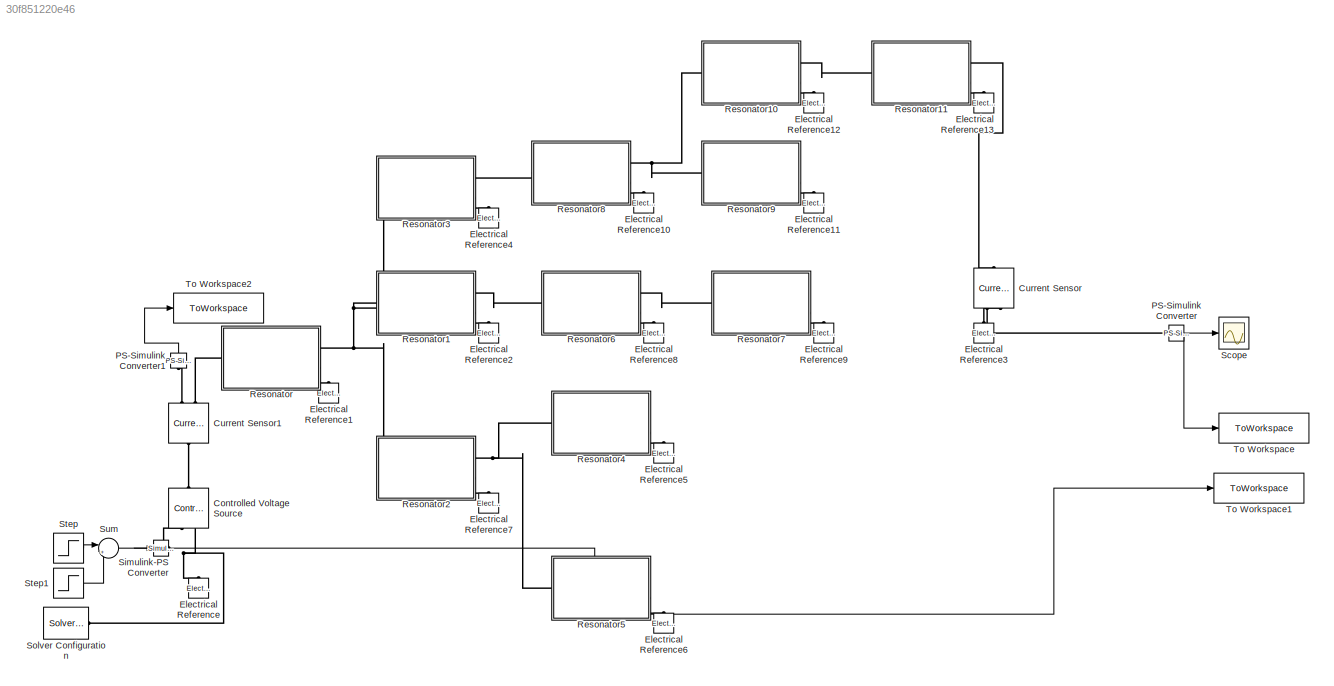
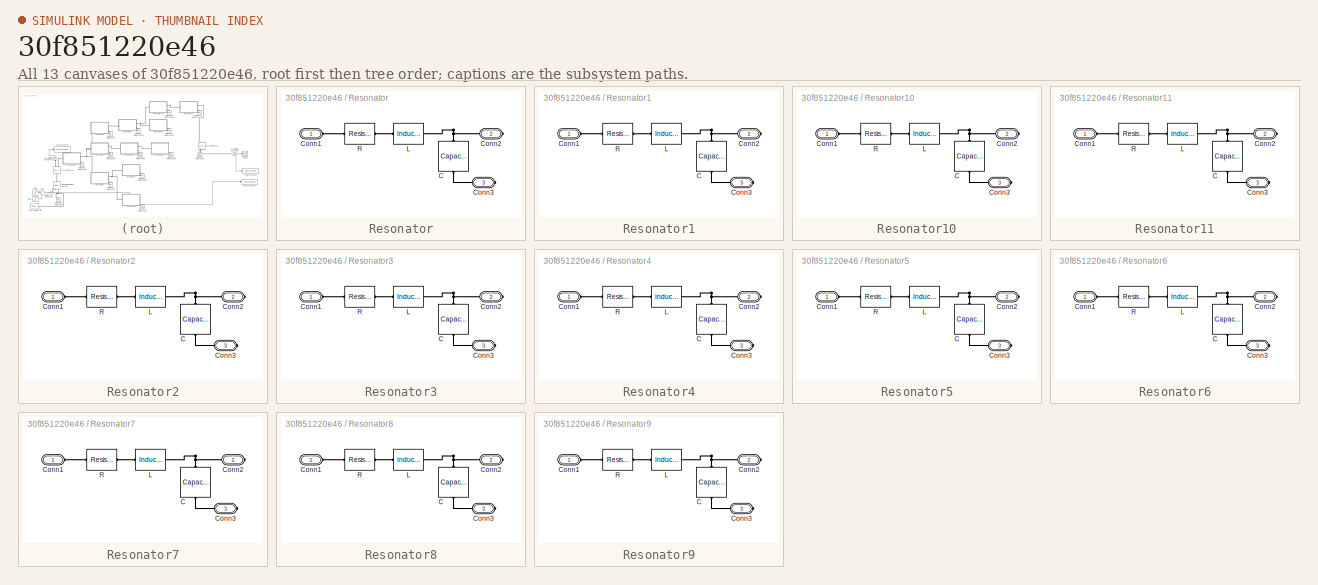
[diagram: thumbnail index - all 13 canvases of the model, root first then tree order]
MODEL slx_30f851220e46
KIND model
CONFIG AbsTol = auto
CONFIG EnableMultiTasking = off
CONFIG FixedStep = 1/Fs
CONFIG MaxStep = auto
CONFIG MinStep = auto
CONFIG PreLoadFcn = 50000
CONFIG RelTol = 1e-3
CONFIG SampleTimeConstraint = Unconstrained
CONFIG SolverName = FixedStepAuto
CONFIG StartTime = 0.0
CONFIG StopTime = 0.1
BLOCK [Reference] Controlled Voltage Source  REF=fl_lib/Electrical/Electrical Sources/Controlled Voltage
Source
  NameLocation = left
  Ports = [0, 0, 0, 0, 0, 1, 2]
  SourceBlock = fl_lib/Electrical/Electrical Sources/Controlled Voltage\nSource
  SourceProductBaseCode = SS
  SourceType = Controlled Voltage\nSource
BLOCK [Reference] Current Sensor  REF=fl_lib/Electrical/Electrical Sensors/Current Sensor
  NameLocation = left
  Ports = [0, 0, 0, 0, 0, 1, 2]
  SourceBlock = fl_lib/Electrical/Electrical Sensors/Current Sensor
  SourceProductBaseCode = SS
  SourceType = Current Sensor
BLOCK [Reference] Current Sensor1  REF=fl_lib/Electrical/Electrical Sensors/Current Sensor
  NameLocation = right
  Ports = [0, 0, 0, 0, 0, 1, 2]
  SourceBlock = fl_lib/Electrical/Electrical Sensors/Current Sensor
  SourceProductBaseCode = SS
  SourceType = Current Sensor
BLOCK [Reference] Electrical Reference  REF=fl_lib/Electrical/Electrical Elements/Electrical Reference
  NameLocation = right
  Ports = [0, 0, 0, 0, 0, 1]
  SourceBlock = fl_lib/Electrical/Electrical Elements/Electrical Reference
  SourceProductBaseCode = SS
  SourceType = Electrical Reference
BLOCK [Reference] Electrical Reference1  REF=fl_lib/Electrical/Electrical Elements/Electrical Reference
  NameLocation = right
  Ports = [0, 0, 0, 0, 0, 1]
  SourceBlock = fl_lib/Electrical/Electrical Elements/Electrical Reference
  SourceProductBaseCode = SS
  SourceType = Electrical Reference
BLOCK [Reference] Electrical Reference10  REF=fl_lib/Electrical/Electrical Elements/Electrical Reference
  NameLocation = right
  Ports = [0, 0, 0, 0, 0, 1]
  SourceBlock = fl_lib/Electrical/Electrical Elements/Electrical Reference
  SourceProductBaseCode = SS
  SourceType = Electrical Reference
BLOCK [Reference] Electrical Reference11  REF=fl_lib/Electrical/Electrical Elements/Electrical Reference
  NameLocation = right
  Ports = [0, 0, 0, 0, 0, 1]
  SourceBlock = fl_lib/Electrical/Electrical Elements/Electrical Reference
  SourceProductBaseCode = SS
  SourceType = Electrical Reference
BLOCK [Reference] Electrical Reference12  REF=fl_lib/Electrical/Electrical Elements/Electrical Reference
  NameLocation = right
  Ports = [0, 0, 0, 0, 0, 1]
  SourceBlock = fl_lib/Electrical/Electrical Elements/Electrical Reference
  SourceProductBaseCode = SS
  SourceType = Electrical Reference
BLOCK [Reference] Electrical Reference13  REF=fl_lib/Electrical/Electrical Elements/Electrical Reference
  NameLocation = right
  Ports = [0, 0, 0, 0, 0, 1]
  SourceBlock = fl_lib/Electrical/Electrical Elements/Electrical Reference
  SourceProductBaseCode = SS
  SourceType = Electrical Reference
BLOCK [Reference] Electrical Reference2  REF=fl_lib/Electrical/Electrical Elements/Electrical Reference
  NameLocation = right
  Ports = [0, 0, 0, 0, 0, 1]
  SourceBlock = fl_lib/Electrical/Electrical Elements/Electrical Reference
  SourceProductBaseCode = SS
  SourceType = Electrical Reference
BLOCK [Reference] Electrical Reference3  REF=fl_lib/Electrical/Electrical Elements/Electrical Reference
  NameLocation = right
  Ports = [0, 0, 0, 0, 0, 1]
  SourceBlock = fl_lib/Electrical/Electrical Elements/Electrical Reference
  SourceProductBaseCode = SS
  SourceType = Electrical Reference
BLOCK [Reference] Electrical Reference4  REF=fl_lib/Electrical/Electrical Elements/Electrical Reference
  NameLocation = right
  Ports = [0, 0, 0, 0, 0, 1]
  SourceBlock = fl_lib/Electrical/Electrical Elements/Electrical Reference
  SourceProductBaseCode = SS
  SourceType = Electrical Reference
BLOCK [Reference] Electrical Reference5  REF=fl_lib/Electrical/Electrical Elements/Electrical Reference
  NameLocation = right
  Ports = [0, 0, 0, 0, 0, 1]
  SourceBlock = fl_lib/Electrical/Electrical Elements/Electrical Reference
  SourceProductBaseCode = SS
  SourceType = Electrical Reference
BLOCK [Reference] Electrical Reference6  REF=fl_lib/Electrical/Electrical Elements/Electrical Reference
  NameLocation = right
  Ports = [0, 0, 0, 0, 0, 1]
  SourceBlock = fl_lib/Electrical/Electrical Elements/Electrical Reference
  SourceProductBaseCode = SS
  SourceType = Electrical Reference
BLOCK [Reference] Electrical Reference7  REF=fl_lib/Electrical/Electrical Elements/Electrical Reference
  NameLocation = right
  Ports = [0, 0, 0, 0, 0, 1]
  SourceBlock = fl_lib/Electrical/Electrical Elements/Electrical Reference
  SourceProductBaseCode = SS
  SourceType = Electrical Reference
BLOCK [Reference] Electrical Reference8  REF=fl_lib/Electrical/Electrical Elements/Electrical Reference
  NameLocation = right
  Ports = [0, 0, 0, 0, 0, 1]
  SourceBlock = fl_lib/Electrical/Electrical Elements/Electrical Reference
  SourceProductBaseCode = SS
  SourceType = Electrical Reference
BLOCK [Reference] Electrical Reference9  REF=fl_lib/Electrical/Electrical Elements/Electrical Reference
  NameLocation = right
  Ports = [0, 0, 0, 0, 0, 1]
  SourceBlock = fl_lib/Electrical/Electrical Elements/Electrical Reference
  SourceProductBaseCode = SS
  SourceType = Electrical Reference
BLOCK [Reference] PS-Simulink Converter  REF=nesl_utility/PS-Simulink
Converter
  Ports = [0, 1, 0, 0, 0, 1]
  SourceBlock = nesl_utility/PS-Simulink\nConverter
  SourceProductBaseCode = PW,SS
  SourceType = PS-Simulink\nConverter
BLOCK [Reference] PS-Simulink Converter1  REF=nesl_utility/PS-Simulink
Converter
  NameLocation = right
  Ports = [0, 1, 0, 0, 0, 1]
  SourceBlock = nesl_utility/PS-Simulink\nConverter
  SourceProductBaseCode = PW,SS
  SourceType = PS-Simulink\nConverter
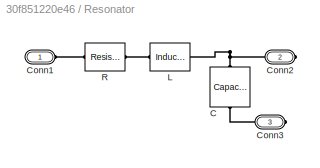
BLOCK [SubSystem] Resonator
  Ports = [0, 0, 0, 0, 0, 1, 2]
  RequestExecContextInheritance = off
BLOCK [Reference] Resonator/C  REF=fl_lib/Electrical/Electrical Elements/Capacitor
  NameLocation = left
  Ports = [0, 0, 0, 0, 0, 1, 1]
  SourceBlock = fl_lib/Electrical/Electrical Elements/Capacitor
  SourceProductBaseCode = SS
  SourceType = Capacitor
BLOCK [PMIOPort] Resonator/Conn1
  Side = Left
BLOCK [PMIOPort] Resonator/Conn2
  Port = 2
  Side = Right
BLOCK [PMIOPort] Resonator/Conn3
  Port = 3
  Side = Right
BLOCK [Reference] Resonator/L  REF=ee_lib/Passive/Inductor
  Ports = [0, 0, 0, 0, 0, 1, 1]
  SourceBlock = ee_lib/Passive/Inductor
  SourceProductBaseCode = PS
  SourceType = Inductor
BLOCK [Reference] Resonator/R  REF=fl_lib/Electrical/Electrical Elements/Resistor
  Ports = [0, 0, 0, 0, 0, 1, 1]
  SourceBlock = fl_lib/Electrical/Electrical Elements/Resistor
  SourceProductBaseCode = SS
  SourceType = Resistor
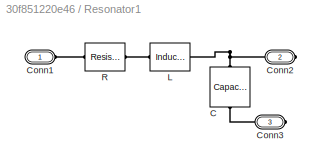
BLOCK [SubSystem] Resonator1
  Ports = [0, 0, 0, 0, 0, 1, 2]
  RequestExecContextInheritance = off
BLOCK [Reference] Resonator1/C  REF=fl_lib/Electrical/Electrical Elements/Capacitor
  NameLocation = left
  Ports = [0, 0, 0, 0, 0, 1, 1]
  SourceBlock = fl_lib/Electrical/Electrical Elements/Capacitor
  SourceProductBaseCode = SS
  SourceType = Capacitor
BLOCK [PMIOPort] Resonator1/Conn1
  Side = Left
BLOCK [PMIOPort] Resonator1/Conn2
  Port = 2
  Side = Right
BLOCK [PMIOPort] Resonator1/Conn3
  Port = 3
  Side = Right
BLOCK [Reference] Resonator1/L  REF=ee_lib/Passive/Inductor
  Ports = [0, 0, 0, 0, 0, 1, 1]
  SourceBlock = ee_lib/Passive/Inductor
  SourceProductBaseCode = PS
  SourceType = Inductor
BLOCK [Reference] Resonator1/R  REF=fl_lib/Electrical/Electrical Elements/Resistor
  Ports = [0, 0, 0, 0, 0, 1, 1]
  SourceBlock = fl_lib/Electrical/Electrical Elements/Resistor
  SourceProductBaseCode = SS
  SourceType = Resistor
BLOCK [SubSystem] Resonator10
  Ports = [0, 0, 0, 0, 0, 1, 2]
  RequestExecContextInheritance = off
BLOCK [Reference] Resonator10/C  REF=fl_lib/Electrical/Electrical Elements/Capacitor
  NameLocation = left
  Ports = [0, 0, 0, 0, 0, 1, 1]
  SourceBlock = fl_lib/Electrical/Electrical Elements/Capacitor
  SourceProductBaseCode = SS
  SourceType = Capacitor
BLOCK [PMIOPort] Resonator10/Conn1
  Side = Left
BLOCK [PMIOPort] Resonator10/Conn2
  Port = 2
  Side = Right
BLOCK [PMIOPort] Resonator10/Conn3
  Port = 3
  Side = Right
BLOCK [Reference] Resonator10/L  REF=ee_lib/Passive/Inductor
  Ports = [0, 0, 0, 0, 0, 1, 1]
  SourceBlock = ee_lib/Passive/Inductor
  SourceProductBaseCode = PS
  SourceType = Inductor
BLOCK [Reference] Resonator10/R  REF=fl_lib/Electrical/Electrical Elements/Resistor
  Ports = [0, 0, 0, 0, 0, 1, 1]
  SourceBlock = fl_lib/Electrical/Electrical Elements/Resistor
  SourceProductBaseCode = SS
  SourceType = Resistor
BLOCK [SubSystem] Resonator11
  Ports = [0, 0, 0, 0, 0, 1, 2]
  RequestExecContextInheritance = off
BLOCK [Reference] Resonator11/C  REF=fl_lib/Electrical/Electrical Elements/Capacitor
  NameLocation = left
  Ports = [0, 0, 0, 0, 0, 1, 1]
  SourceBlock = fl_lib/Electrical/Electrical Elements/Capacitor
  SourceProductBaseCode = SS
  SourceType = Capacitor
BLOCK [PMIOPort] Resonator11/Conn1
  Side = Left
BLOCK [PMIOPort] Resonator11/Conn2
  Port = 2
  Side = Right
BLOCK [PMIOPort] Resonator11/Conn3
  Port = 3
  Side = Right
BLOCK [Reference] Resonator11/L  REF=ee_lib/Passive/Inductor
  Ports = [0, 0, 0, 0, 0, 1, 1]
  SourceBlock = ee_lib/Passive/Inductor
  SourceProductBaseCode = PS
  SourceType = Inductor
BLOCK [Reference] Resonator11/R  REF=fl_lib/Electrical/Electrical Elements/Resistor
  Ports = [0, 0, 0, 0, 0, 1, 1]
  SourceBlock = fl_lib/Electrical/Electrical Elements/Resistor
  SourceProductBaseCode = SS
  SourceType = Resistor
BLOCK [SubSystem] Resonator2
  Ports = [0, 0, 0, 0, 0, 1, 2]
  RequestExecContextInheritance = off
BLOCK [Reference] Resonator2/C  REF=fl_lib/Electrical/Electrical Elements/Capacitor
  NameLocation = left
  Ports = [0, 0, 0, 0, 0, 1, 1]
  SourceBlock = fl_lib/Electrical/Electrical Elements/Capacitor
  SourceProductBaseCode = SS
  SourceType = Capacitor
BLOCK [PMIOPort] Resonator2/Conn1
  Side = Left
BLOCK [PMIOPort] Resonator2/Conn2
  Port = 2
  Side = Right
BLOCK [PMIOPort] Resonator2/Conn3
  Port = 3
  Side = Right
BLOCK [Reference] Resonator2/L  REF=ee_lib/Passive/Inductor
  Ports = [0, 0, 0, 0, 0, 1, 1]
  SourceBlock = ee_lib/Passive/Inductor
  SourceProductBaseCode = PS
  SourceType = Inductor
BLOCK [Reference] Resonator2/R  REF=fl_lib/Electrical/Electrical Elements/Resistor
  Ports = [0, 0, 0, 0, 0, 1, 1]
  SourceBlock = fl_lib/Electrical/Electrical Elements/Resistor
  SourceProductBaseCode = SS
  SourceType = Resistor
BLOCK [SubSystem] Resonator3
  Ports = [0, 0, 0, 0, 0, 1, 2]
  RequestExecContextInheritance = off
BLOCK [Reference] Resonator3/C  REF=fl_lib/Electrical/Electrical Elements/Capacitor
  NameLocation = left
  Ports = [0, 0, 0, 0, 0, 1, 1]
  SourceBlock = fl_lib/Electrical/Electrical Elements/Capacitor
  SourceProductBaseCode = SS
  SourceType = Capacitor
BLOCK [PMIOPort] Resonator3/Conn1
  Side = Left
BLOCK [PMIOPort] Resonator3/Conn2
  Port = 2
  Side = Right
BLOCK [PMIOPort] Resonator3/Conn3
  Port = 3
  Side = Right
BLOCK [Reference] Resonator3/L  REF=ee_lib/Passive/Inductor
  Ports = [0, 0, 0, 0, 0, 1, 1]
  SourceBlock = ee_lib/Passive/Inductor
  SourceProductBaseCode = PS
  SourceType = Inductor
BLOCK [Reference] Resonator3/R  REF=fl_lib/Electrical/Electrical Elements/Resistor
  Ports = [0, 0, 0, 0, 0, 1, 1]
  SourceBlock = fl_lib/Electrical/Electrical Elements/Resistor
  SourceProductBaseCode = SS
  SourceType = Resistor
BLOCK [SubSystem] Resonator4
  Ports = [0, 0, 0, 0, 0, 1, 2]
  RequestExecContextInheritance = off
BLOCK [Reference] Resonator4/C  REF=fl_lib/Electrical/Electrical Elements/Capacitor
  NameLocation = left
  Ports = [0, 0, 0, 0, 0, 1, 1]
  SourceBlock = fl_lib/Electrical/Electrical Elements/Capacitor
  SourceProductBaseCode = SS
  SourceType = Capacitor
BLOCK [PMIOPort] Resonator4/Conn1
  Side = Left
BLOCK [PMIOPort] Resonator4/Conn2
  Port = 2
  Side = Right
BLOCK [PMIOPort] Resonator4/Conn3
  Port = 3
  Side = Right
BLOCK [Reference] Resonator4/L  REF=ee_lib/Passive/Inductor
  Ports = [0, 0, 0, 0, 0, 1, 1]
  SourceBlock = ee_lib/Passive/Inductor
  SourceProductBaseCode = PS
  SourceType = Inductor
BLOCK [Reference] Resonator4/R  REF=fl_lib/Electrical/Electrical Elements/Resistor
  Ports = [0, 0, 0, 0, 0, 1, 1]
  SourceBlock = fl_lib/Electrical/Electrical Elements/Resistor
  SourceProductBaseCode = SS
  SourceType = Resistor
BLOCK [SubSystem] Resonator5
  Ports = [0, 0, 0, 0, 0, 1, 2]
  RequestExecContextInheritance = off
BLOCK [Reference] Resonator5/C  REF=fl_lib/Electrical/Electrical Elements/Capacitor
  NameLocation = left
  Ports = [0, 0, 0, 0, 0, 1, 1]
  SourceBlock = fl_lib/Electrical/Electrical Elements/Capacitor
  SourceProductBaseCode = SS
  SourceType = Capacitor
BLOCK [PMIOPort] Resonator5/Conn1
  Side = Left
BLOCK [PMIOPort] Resonator5/Conn2
  Port = 2
  Side = Right
BLOCK [PMIOPort] Resonator5/Conn3
  Port = 3
  Side = Right
BLOCK [Reference] Resonator5/L  REF=ee_lib/Passive/Inductor
  Ports = [0, 0, 0, 0, 0, 1, 1]
  SourceBlock = ee_lib/Passive/Inductor
  SourceProductBaseCode = PS
  SourceType = Inductor
BLOCK [Reference] Resonator5/R  REF=fl_lib/Electrical/Electrical Elements/Resistor
  Ports = [0, 0, 0, 0, 0, 1, 1]
  SourceBlock = fl_lib/Electrical/Electrical Elements/Resistor
  SourceProductBaseCode = SS
  SourceType = Resistor
BLOCK [SubSystem] Resonator6
  Ports = [0, 0, 0, 0, 0, 1, 2]
  RequestExecContextInheritance = off
BLOCK [Reference] Resonator6/C  REF=fl_lib/Electrical/Electrical Elements/Capacitor
  NameLocation = left
  Ports = [0, 0, 0, 0, 0, 1, 1]
  SourceBlock = fl_lib/Electrical/Electrical Elements/Capacitor
  SourceProductBaseCode = SS
  SourceType = Capacitor
BLOCK [PMIOPort] Resonator6/Conn1
  Side = Left
BLOCK [PMIOPort] Resonator6/Conn2
  Port = 2
  Side = Right
BLOCK [PMIOPort] Resonator6/Conn3
  Port = 3
  Side = Right
BLOCK [Reference] Resonator6/L  REF=ee_lib/Passive/Inductor
  Ports = [0, 0, 0, 0, 0, 1, 1]
  SourceBlock = ee_lib/Passive/Inductor
  SourceProductBaseCode = PS
  SourceType = Inductor
BLOCK [Reference] Resonator6/R  REF=fl_lib/Electrical/Electrical Elements/Resistor
  Ports = [0, 0, 0, 0, 0, 1, 1]
  SourceBlock = fl_lib/Electrical/Electrical Elements/Resistor
  SourceProductBaseCode = SS
  SourceType = Resistor
BLOCK [SubSystem] Resonator7
  Ports = [0, 0, 0, 0, 0, 1, 2]
  RequestExecContextInheritance = off
BLOCK [Reference] Resonator7/C  REF=fl_lib/Electrical/Electrical Elements/Capacitor
  NameLocation = left
  Ports = [0, 0, 0, 0, 0, 1, 1]
  SourceBlock = fl_lib/Electrical/Electrical Elements/Capacitor
  SourceProductBaseCode = SS
  SourceType = Capacitor
BLOCK [PMIOPort] Resonator7/Conn1
  Side = Left
BLOCK [PMIOPort] Resonator7/Conn2
  Port = 2
  Side = Right
BLOCK [PMIOPort] Resonator7/Conn3
  Port = 3
  Side = Right
BLOCK [Reference] Resonator7/L  REF=ee_lib/Passive/Inductor
  Ports = [0, 0, 0, 0, 0, 1, 1]
  SourceBlock = ee_lib/Passive/Inductor
  SourceProductBaseCode = PS
  SourceType = Inductor
BLOCK [Reference] Resonator7/R  REF=fl_lib/Electrical/Electrical Elements/Resistor
  Ports = [0, 0, 0, 0, 0, 1, 1]
  SourceBlock = fl_lib/Electrical/Electrical Elements/Resistor
  SourceProductBaseCode = SS
  SourceType = Resistor
BLOCK [SubSystem] Resonator8
  Ports = [0, 0, 0, 0, 0, 1, 2]
  RequestExecContextInheritance = off
BLOCK [Reference] Resonator8/C  REF=fl_lib/Electrical/Electrical Elements/Capacitor
  NameLocation = left
  Ports = [0, 0, 0, 0, 0, 1, 1]
  SourceBlock = fl_lib/Electrical/Electrical Elements/Capacitor
  SourceProductBaseCode = SS
  SourceType = Capacitor
BLOCK [PMIOPort] Resonator8/Conn1
  Side = Left
BLOCK [PMIOPort] Resonator8/Conn2
  Port = 2
  Side = Right
BLOCK [PMIOPort] Resonator8/Conn3
  Port = 3
  Side = Right
BLOCK [Reference] Resonator8/L  REF=ee_lib/Passive/Inductor
  Ports = [0, 0, 0, 0, 0, 1, 1]
  SourceBlock = ee_lib/Passive/Inductor
  SourceProductBaseCode = PS
  SourceType = Inductor
BLOCK [Reference] Resonator8/R  REF=fl_lib/Electrical/Electrical Elements/Resistor
  Ports = [0, 0, 0, 0, 0, 1, 1]
  SourceBlock = fl_lib/Electrical/Electrical Elements/Resistor
  SourceProductBaseCode = SS
  SourceType = Resistor
BLOCK [SubSystem] Resonator9
  Ports = [0, 0, 0, 0, 0, 1, 2]
  RequestExecContextInheritance = off
BLOCK [Reference] Resonator9/C  REF=fl_lib/Electrical/Electrical Elements/Capacitor
  NameLocation = left
  Ports = [0, 0, 0, 0, 0, 1, 1]
  SourceBlock = fl_lib/Electrical/Electrical Elements/Capacitor
  SourceProductBaseCode = SS
  SourceType = Capacitor
BLOCK [PMIOPort] Resonator9/Conn1
  Side = Left
BLOCK [PMIOPort] Resonator9/Conn2
  Port = 2
  Side = Right
BLOCK [PMIOPort] Resonator9/Conn3
  Port = 3
  Side = Right
BLOCK [Reference] Resonator9/L  REF=ee_lib/Passive/Inductor
  Ports = [0, 0, 0, 0, 0, 1, 1]
  SourceBlock = ee_lib/Passive/Inductor
  SourceProductBaseCode = PS
  SourceType = Inductor
BLOCK [Reference] Resonator9/R  REF=fl_lib/Electrical/Electrical Elements/Resistor
  Ports = [0, 0, 0, 0, 0, 1, 1]
  SourceBlock = fl_lib/Electrical/Electrical Elements/Resistor
  SourceProductBaseCode = SS
  SourceType = Resistor
BLOCK [Scope] Scope
  Floating = off
  NumInputPorts = 1
  Ports = [1]
  ScopeSpecificationString = Simulink.scopes.TimeScopeBlockCfg('CurrentConfiguration', extmgr.ConfigurationSet(extmgr.Configuration('Core','General UI',true),extmgr.Configuration('Core','Source UI',true),extmgr.Configuration('Sources','WiredSimulink',true),extmgr.Configuration('Visuals','Time Domain',true,'SerializedDisplays',{struct('MinYLimReal','-1.00000','MaxYLimReal','1.00000','YLabelReal','','MinYLimMag','0.00000','MaxY...<+1341ch>
BLOCK [Reference] Simulink-PS Converter  REF=nesl_utility/Simulink-PS
Converter
  Ports = [1, 0, 0, 0, 0, 0, 1]
  SourceBlock = nesl_utility/Simulink-PS\nConverter
  SourceProductBaseCode = PW,SS
  SourceType = Simulink-PS\nConverter
BLOCK [Reference] Solver Configuration  REF=nesl_utility/Solver
Configuration
  Ports = [0, 0, 0, 0, 0, 0, 1]
  SourceBlock = nesl_utility/Solver\nConfiguration
  SourceProductBaseCode = PW,SS
  SourceType = Solver\nConfiguration
BLOCK [Step] Step
  SampleTime = 0
  Time = 1/Fs
BLOCK [Step] Step1
  SampleTime = 0
  Time = 2/Fs
BLOCK [Sum] Sum
  Inputs = |+-
  Ports = [2, 1]
BLOCK [ToWorkspace] To Workspace
  FixptAsFi = on
  MaxDataPoints = inf
  Ports = [1]
  SampleTime = -1
  SaveFormat = Timeseries
  VariableName = output
BLOCK [ToWorkspace] To Workspace1
  FixptAsFi = on
  MaxDataPoints = inf
  Ports = [1]
  SampleTime = -1
  SaveFormat = Timeseries
  VariableName = input
BLOCK [ToWorkspace] To Workspace2
  FixptAsFi = on
  MaxDataPoints = inf
  Ports = [1]
  SampleTime = -1
  SaveFormat = Timeseries
  VariableName = output2
LINE PS-Simulink Converter1:1 -> To Workspace2:1
NET PS-Simulink Converter:1 -> Scope:1, To Workspace:1
LINE Step1:1 -> Sum:2
LINE Step:1 -> Sum:1
NET Sum:1 -> Simulink-PS Converter:1, To Workspace1:1
PLINE Controlled Voltage Source:LConn1 -- Current Sensor1:LConn1
PLINE Controlled Voltage Source:RConn1 -- Simulink-PS Converter:RConn1
PNET net1: Controlled Voltage Source:RConn2 -- Electrical Reference:LConn1 -- Solver Configuration:RConn1
PLINE Current Sensor1:RConn1 -- PS-Simulink Converter1:LConn1
PLINE Current Sensor1:RConn2 -- Resonator:LConn1
PLINE Current Sensor:LConn1 -- Resonator11:RConn1
PLINE Current Sensor:RConn1 -- PS-Simulink Converter:LConn1
PLINE Current Sensor:RConn2 -- Electrical Reference3:LConn1
PLINE Electrical Reference10:LConn1 -- Resonator8:RConn2
PLINE Electrical Reference11:LConn1 -- Resonator9:RConn2
PLINE Electrical Reference12:LConn1 -- Resonator10:RConn2
PLINE Electrical Reference13:LConn1 -- Resonator11:RConn2
PLINE Electrical Reference1:LConn1 -- Resonator:RConn2
PLINE Electrical Reference2:LConn1 -- Resonator1:RConn2
PLINE Electrical Reference4:LConn1 -- Resonator3:RConn2
PLINE Electrical Reference5:LConn1 -- Resonator4:RConn2
PLINE Electrical Reference6:LConn1 -- Resonator5:RConn2
PLINE Electrical Reference7:LConn1 -- Resonator2:RConn2
PLINE Electrical Reference8:LConn1 -- Resonator6:RConn2
PLINE Electrical Reference9:LConn1 -- Resonator7:RConn2
PNET net2: Resonator/C:LConn1 -- Resonator/Conn2:RConn1 -- Resonator/L:RConn1
PLINE Resonator/C:RConn1 -- Resonator/Conn3:RConn1
PLINE Resonator/Conn1:RConn1 -- Resonator/R:LConn1
PLINE Resonator/L:LConn1 -- Resonator/R:RConn1
PNET net3: Resonator1/C:LConn1 -- Resonator1/Conn2:RConn1 -- Resonator1/L:RConn1
PLINE Resonator1/C:RConn1 -- Resonator1/Conn3:RConn1
PLINE Resonator1/Conn1:RConn1 -- Resonator1/R:LConn1
PLINE Resonator1/L:LConn1 -- Resonator1/R:RConn1
PNET net4: Resonator10/C:LConn1 -- Resonator10/Conn2:RConn1 -- Resonator10/L:RConn1
PLINE Resonator10/C:RConn1 -- Resonator10/Conn3:RConn1
PLINE Resonator10/Conn1:RConn1 -- Resonator10/R:LConn1
PLINE Resonator10/L:LConn1 -- Resonator10/R:RConn1
PNET net5: Resonator10:LConn1 -- Resonator8:RConn1 -- Resonator9:LConn1
PLINE Resonator10:RConn1 -- Resonator11:LConn1
PNET net6: Resonator11/C:LConn1 -- Resonator11/Conn2:RConn1 -- Resonator11/L:RConn1
PLINE Resonator11/C:RConn1 -- Resonator11/Conn3:RConn1
PLINE Resonator11/Conn1:RConn1 -- Resonator11/R:LConn1
PLINE Resonator11/L:LConn1 -- Resonator11/R:RConn1
PNET net7: Resonator1:LConn1 -- Resonator2:LConn1 -- Resonator3:LConn1 -- Resonator:RConn1
PLINE Resonator1:RConn1 -- Resonator6:LConn1
PNET net8: Resonator2/C:LConn1 -- Resonator2/Conn2:RConn1 -- Resonator2/L:RConn1
PLINE Resonator2/C:RConn1 -- Resonator2/Conn3:RConn1
PLINE Resonator2/Conn1:RConn1 -- Resonator2/R:LConn1
PLINE Resonator2/L:LConn1 -- Resonator2/R:RConn1
PNET net9: Resonator2:RConn1 -- Resonator4:LConn1 -- Resonator5:LConn1
PNET net10: Resonator3/C:LConn1 -- Resonator3/Conn2:RConn1 -- Resonator3/L:RConn1
PLINE Resonator3/C:RConn1 -- Resonator3/Conn3:RConn1
PLINE Resonator3/Conn1:RConn1 -- Resonator3/R:LConn1
PLINE Resonator3/L:LConn1 -- Resonator3/R:RConn1
PLINE Resonator3:RConn1 -- Resonator8:LConn1
PNET net11: Resonator4/C:LConn1 -- Resonator4/Conn2:RConn1 -- Resonator4/L:RConn1
PLINE Resonator4/C:RConn1 -- Resonator4/Conn3:RConn1
PLINE Resonator4/Conn1:RConn1 -- Resonator4/R:LConn1
PLINE Resonator4/L:LConn1 -- Resonator4/R:RConn1
PNET net12: Resonator5/C:LConn1 -- Resonator5/Conn2:RConn1 -- Resonator5/L:RConn1
PLINE Resonator5/C:RConn1 -- Resonator5/Conn3:RConn1
PLINE Resonator5/Conn1:RConn1 -- Resonator5/R:LConn1
PLINE Resonator5/L:LConn1 -- Resonator5/R:RConn1
PNET net13: Resonator6/C:LConn1 -- Resonator6/Conn2:RConn1 -- Resonator6/L:RConn1
PLINE Resonator6/C:RConn1 -- Resonator6/Conn3:RConn1
PLINE Resonator6/Conn1:RConn1 -- Resonator6/R:LConn1
PLINE Resonator6/L:LConn1 -- Resonator6/R:RConn1
PLINE Resonator6:RConn1 -- Resonator7:LConn1
PNET net14: Resonator7/C:LConn1 -- Resonator7/Conn2:RConn1 -- Resonator7/L:RConn1
PLINE Resonator7/C:RConn1 -- Resonator7/Conn3:RConn1
PLINE Resonator7/Conn1:RConn1 -- Resonator7/R:LConn1
PLINE Resonator7/L:LConn1 -- Resonator7/R:RConn1
PNET net15: Resonator8/C:LConn1 -- Resonator8/Conn2:RConn1 -- Resonator8/L:RConn1
PLINE Resonator8/C:RConn1 -- Resonator8/Conn3:RConn1
PLINE Resonator8/Conn1:RConn1 -- Resonator8/R:LConn1
PLINE Resonator8/L:LConn1 -- Resonator8/R:RConn1
PNET net16: Resonator9/C:LConn1 -- Resonator9/Conn2:RConn1 -- Resonator9/L:RConn1
PLINE Resonator9/C:RConn1 -- Resonator9/Conn3:RConn1
PLINE Resonator9/Conn1:RConn1 -- Resonator9/R:LConn1
PLINE Resonator9/L:LConn1 -- Resonator9/R:RConn1
note: NET lines group one-source signal fan-out (src -> all destinations, sorted); 1:1 wires keep LINE; PNET lines group multi-terminal physical nets as a canonical sorted terminal list (undirected conserving connections); 2-terminal nets keep the pairwise PLINE form
